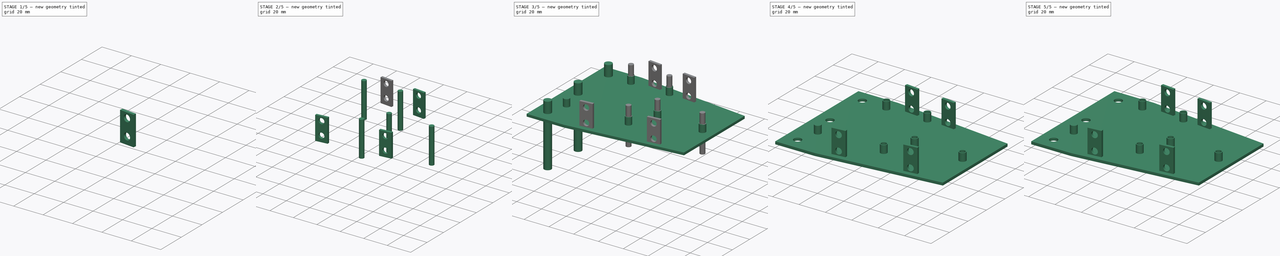
[diagram: build sequence overview — one tinted view per stage of 5, left to right]
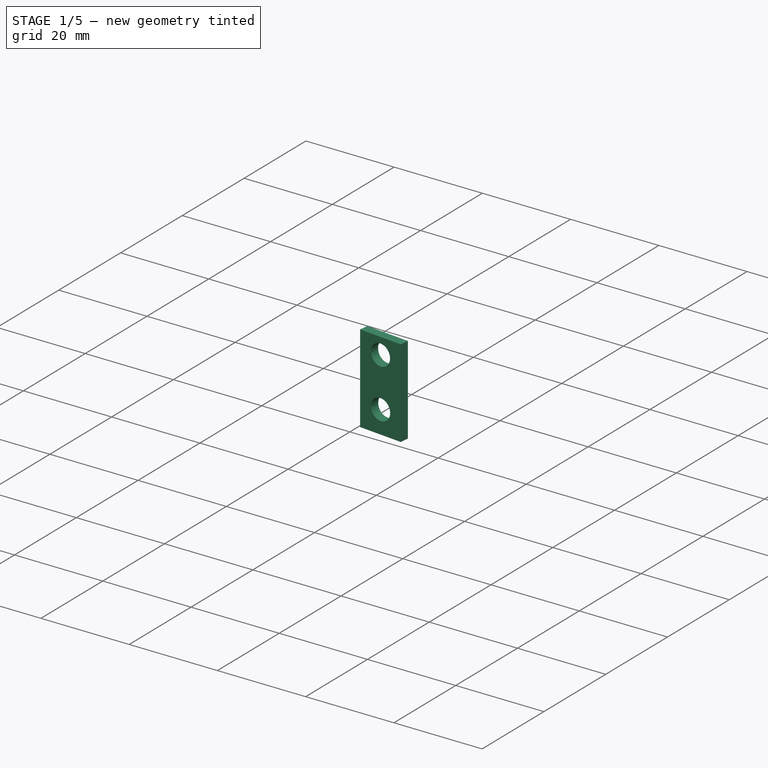
[diagram: stage 1 of 5 — iso view after this stage's code; geometry added in this stage tinted green]
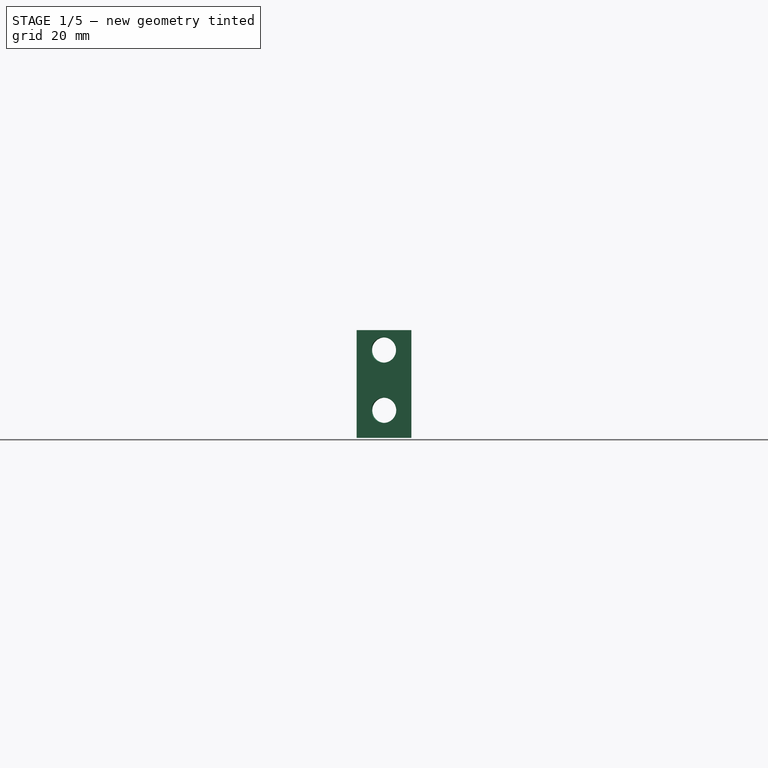
[diagram: stage 1 of 5 — front view after this stage's code; geometry added in this stage tinted green]
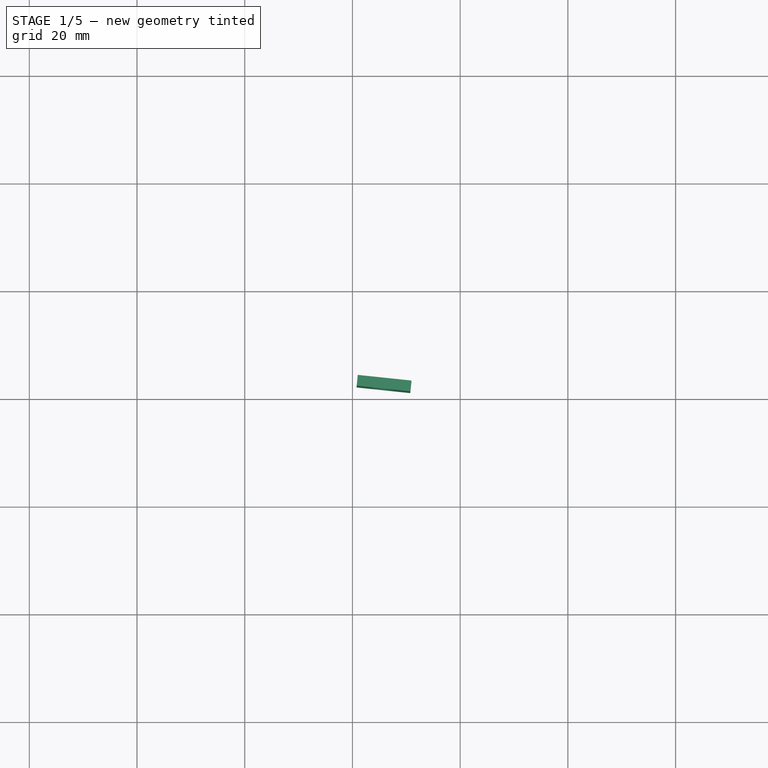
[diagram: stage 1 of 5 — top view after this stage's code; geometry added in this stage tinted green]
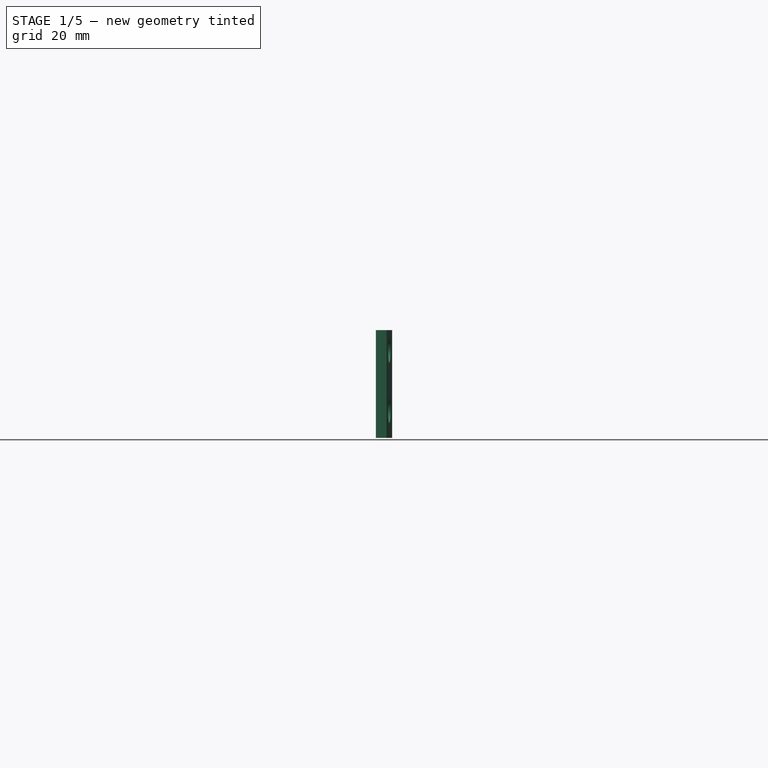
[diagram: stage 1 of 5 — right view after this stage's code; geometry added in this stage tinted green]
FCSTD DOCUMENT  (FreeCAD 0.20R29410 (Git))
Label: Base delantera
License: Creative Commons Attribution-ShareAlike
LicenseURL: http://creativecommons.org/licenses/by-sa/4.0/
objects: Sketcher::SketchObject×6, Part::Extrusion×6, Part::Cut×6, Part::MultiFuse×5
note: 23 computed .brp shape members not serialized (recipe doc carries the construction recipe); baked Part::Feature solids carry a one-line shape summary decoded from their .brp

FEATURE [Sketcher::SketchObject] Sketch003
  FullyConstrained = false
  MapMode = 5
  Placement = pos=(0,0,10) rot=(0,0,1;0rad)
  sketch-geometry (4):
    g0: Circle CenterX=10 CenterY=80.0167 CenterZ=0 NormalX=0 NormalY=0 NormalZ=1 AngleXU=0 Radius=2.9
    g1: Circle CenterX=10 CenterY=45.0083 CenterZ=0 NormalX=0 NormalY=0 NormalZ=1 AngleXU=0 Radius=2.9
    g2: Circle CenterX=10 CenterY=10 CenterZ=0 NormalX=0 NormalY=0 NormalZ=1 AngleXU=0 Radius=2.9
    g3: LineSegment StartX=10 StartY=10 StartZ=0 EndX=10 EndY=80.0167 EndZ=0
  constraints (7):
    c: Coincident(g3,g2)
    c: Coincident(g3,g0)
    c: Vertical(g3)
    c: Symmetric(g3,g3,g1)
    c: Diameter(g0) = 5.8
    c: Equal(g0,g1)
    c: Equal(g1,g2)
FEATURE [Sketcher::SketchObject] Sketch017
  FullyConstrained = false
  MapMode = 5
  Placement = pos=(0,0,30) rot=(0,0,1;0rad)
  sketch-geometry (6):
    g0: Circle CenterX=74.7921 CenterY=44.0089 CenterZ=0 NormalX=0 NormalY=0 NormalZ=1 AngleXU=0 Radius=2.55289
    g1: Circle CenterX=111.059 CenterY=44.0927 CenterZ=0 NormalX=0 NormalY=0 NormalZ=1 AngleXU=0 Radius=2.55289
    g2: Circle CenterX=60.0507 CenterY=78.8522 CenterZ=0 NormalX=0 NormalY=0 NormalZ=1 AngleXU=0 Radius=2.4438
    g3: Circle CenterX=29.1441 CenterY=78.6009 CenterZ=0 NormalX=0 NormalY=0 NormalZ=1 AngleXU=0 Radius=2.4438
    g4: Circle CenterX=14.5702 CenterY=25.2471 CenterZ=0 NormalX=0 NormalY=0 NormalZ=1 AngleXU=0 Radius=2.4438
    g5: Circle CenterX=64.4061 CenterY=25.4146 CenterZ=0 NormalX=0 NormalY=0 NormalZ=1 AngleXU=0 Radius=2.4438
  constraints (4):
    c: Equal(g0,g1)
    c: Equal(g2,g3)
    c: Equal(g3,g4)
    c: Equal(g4,g5)
FEATURE [Sketcher::SketchObject] Sketch018
  FullyConstrained = false
  MapMode = 5
  Placement = pos=(0,0,36) rot=(0,0,1;0rad)
  sketch-geometry (5):
    g0: Circle CenterX=74.7892 CenterY=44.0624 CenterZ=0 NormalX=0 NormalY=0 NormalZ=1 AngleXU=0 Radius=1.95541
    g1: Circle CenterX=111.024 CenterY=44.1108 CenterZ=0 NormalX=0 NormalY=0 NormalZ=1 AngleXU=0 Radius=1.95541
    g2: Circle CenterX=29.1598 CenterY=78.6822 CenterZ=0 NormalX=0 NormalY=0 NormalZ=1 AngleXU=0 Radius=1.945
    g3: Circle CenterX=60.0393 CenterY=78.8506 CenterZ=0 NormalX=0 NormalY=0 NormalZ=1 AngleXU=0 Radius=1.94571
    g4: Circle CenterX=64.4121 CenterY=25.4887 CenterZ=0 NormalX=0 NormalY=0 NormalZ=1 AngleXU=0 Radius=1.94571
  constraints (3):
    c: Equal(g0,g1)
    c: Equal(g3,g4)
    c: Diameter(g2) = 3.89
FEATURE [Sketcher::SketchObject] Sketch047
  FullyConstrained = false
  Placement = pos=(0,0,0) rot=(1,0,0;1.5708rad)
  sketch-geometry (4):
    g0: LineSegment StartX=-140 StartY=10 StartZ=0 EndX=-130 EndY=10 EndZ=0
    g1: LineSegment StartX=-130 StartY=10 StartZ=0 EndX=-130 EndY=30 EndZ=0
    g2: LineSegment StartX=-130 StartY=30 StartZ=0 EndX=-140 EndY=30 EndZ=0
    g3: LineSegment StartX=-140 StartY=30 StartZ=0 EndX=-140 EndY=10 EndZ=0
  constraints (8):
    c: Coincident(g0,g1)
    c: Coincident(g1,g2)
    c: Coincident(g2,g3)
    c: Coincident(g3,g0)
    c: Horizontal(g0)
    c: Horizontal(g2)
    c: Vertical(g1)
    c: Vertical(g3)
FEATURE [Part::Extrusion] Extrude049  label="Soporte008"
  Base = -> Sketch047
  Dir = (0,-1,2e-16)
  DirMode = 2
  FaceMakerClass = Part::FaceMakerBullseye
  LengthFwd = 2
  LengthRev = 0
  Placement = pos=(-96,-107,0) rot=(0,0,-1;1.5708rad)
  Solid = true
  Symmetric = false
FEATURE [Sketcher::SketchObject] Sketch048
  FullyConstrained = false
  MapMode = 5
  Placement = pos=(-98,-107,4e-16) rot=(0.57735,-0.57735,-0.57735;2.0944rad)
  Support = -> [Extrude049]
  sketch-geometry (4):
    g0: LineSegment StartX=-140.016 StartY=26.302 StartZ=0 EndX=-130.004 EndY=26.302 EndZ=0
    g1: Circle CenterX=-135.01 CenterY=26.302 CenterZ=0 NormalX=0 NormalY=0 NormalZ=1 AngleXU=0 Radius=2.34
    g2: LineSegment StartX=-140.095 StartY=15.1162 StartZ=0 EndX=-130 EndY=15.1162 EndZ=0
    g3: Circle CenterX=-135.047 CenterY=15.1162 CenterZ=0 NormalX=0 NormalY=0 NormalZ=1 AngleXU=0 Radius=2.34
  constraints (6):
    c: Horizontal(g0)
    c: Symmetric(g0,g0,g1)
    c: Horizontal(g2)
    c: Symmetric(g2,g2,g3)
    c: Equal(g1,g3)
    c: Diameter(g3) = 4.68
FEATURE [Part::Extrusion] Extrude050  label="Tornillos010"
  Base = -> Sketch048
  Dir = (-1,-2e-16,2e-16)
  DirMode = 2
  FaceMakerClass = Part::FaceMakerBullseye
  LengthFwd = 20
  LengthRev = 0
  Placement = pos=(17,0,0) rot=(0,0,1;0rad)
  Solid = true
  Symmetric = false
FEATURE [Part::Cut] Cut030  label="Soporte017"
  Base = -> Extrude049
  Placement = pos=(7.86971,-10.8501,18) rot=(0,0,-1;1.67552rad)
  Refine = true
  Tool = -> Extrude050
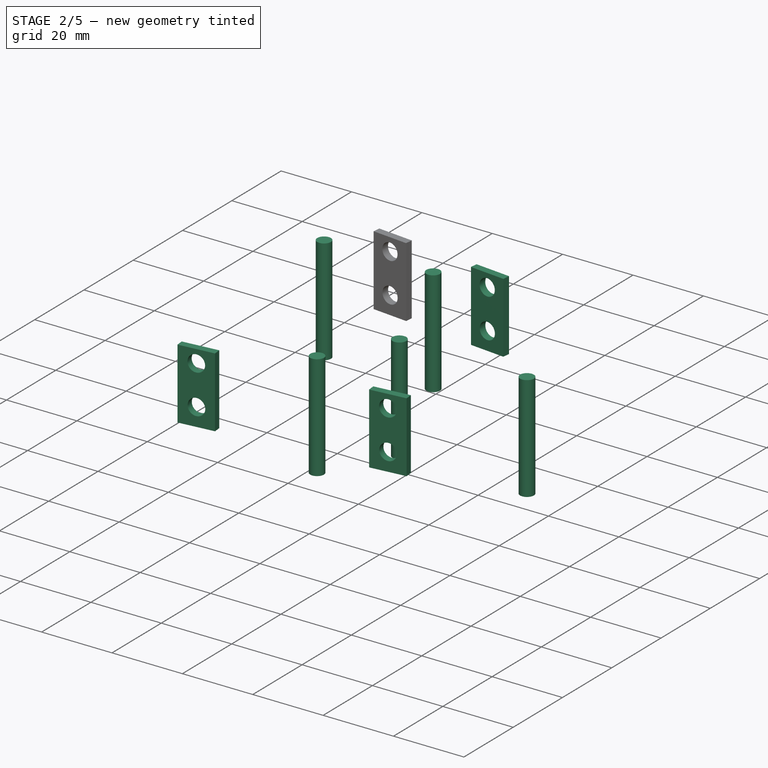
[diagram: stage 2 of 5 — iso view after this stage's code; geometry added in this stage tinted green]
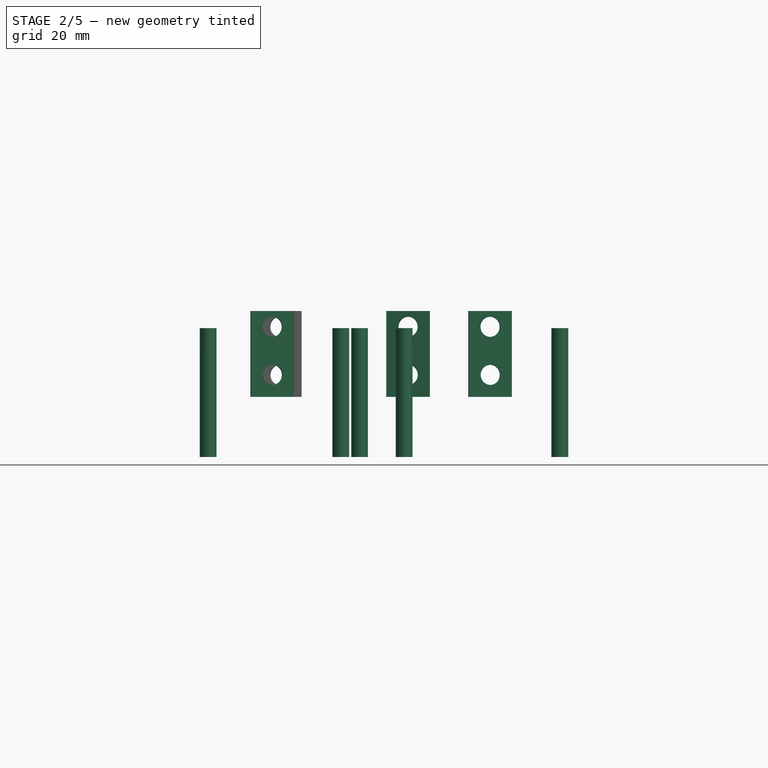
[diagram: stage 2 of 5 — front view after this stage's code; geometry added in this stage tinted green]
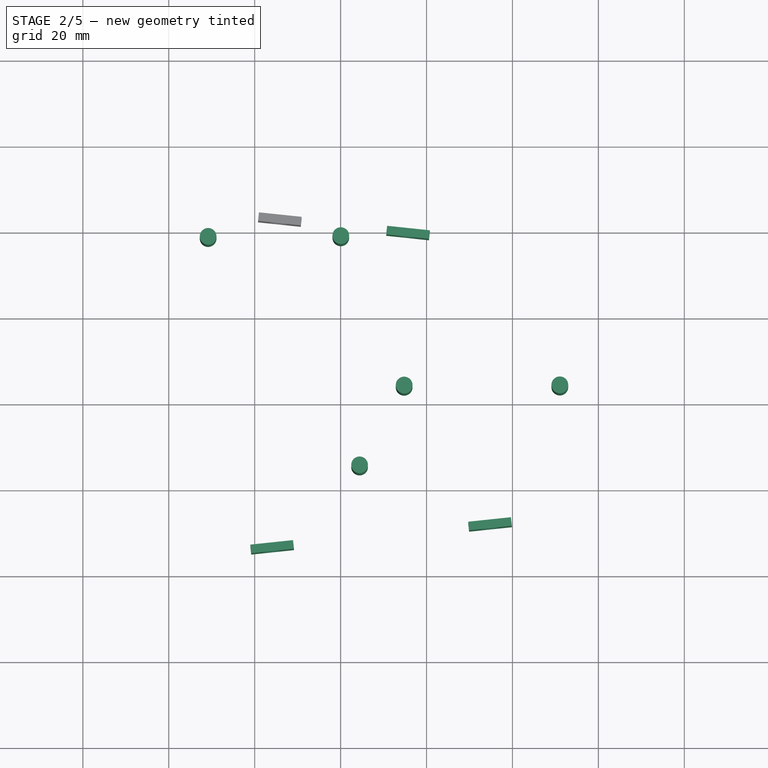
[diagram: stage 2 of 5 — top view after this stage's code; geometry added in this stage tinted green]
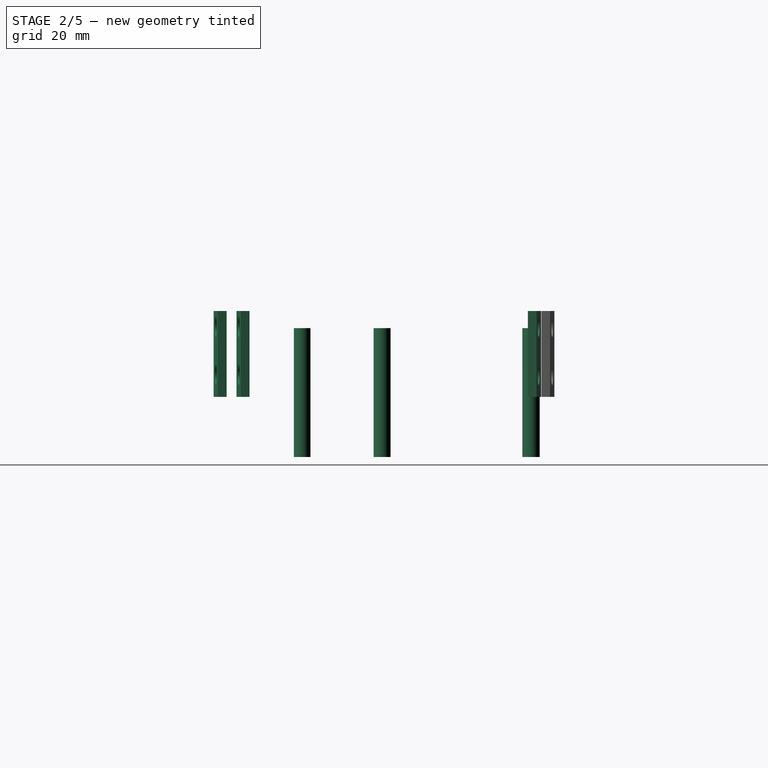
[diagram: stage 2 of 5 — right view after this stage's code; geometry added in this stage tinted green]
FEATURE [Part::Extrusion] Extrude054
  Base = -> Sketch018
  Dir = (0,0,1)
  DirMode = 2
  FaceMakerClass = Part::FaceMakerBullseye
  LengthFwd = 30
  LengthRev = 0
  Placement = pos=(0,0,-22) rot=(0,0,1;0rad)
  Solid = true
  Symmetric = false
FEATURE [Part::Cut] Cut027  label="Soporte014"
  Base = -> Extrude049
  Placement = pos=(77.0696,-87.6841,18) rot=(0,0,-1;1.46608rad)
  Refine = true
  Tool = -> Extrude050
FEATURE [Part::Cut] Cut028  label="Soporte015"
  Base = -> Extrude049
  Placement = pos=(26.349,-93.0151,18) rot=(0,0,-1;1.46608rad)
  Refine = true
  Tool = -> Extrude050
FEATURE [Part::Cut] Cut029  label="Soporte016"
  Base = -> Extrude049
  Placement = pos=(37.7054,-13.986,18) rot=(0,0,-1;1.67552rad)
  Refine = true
  Tool = -> Extrude050
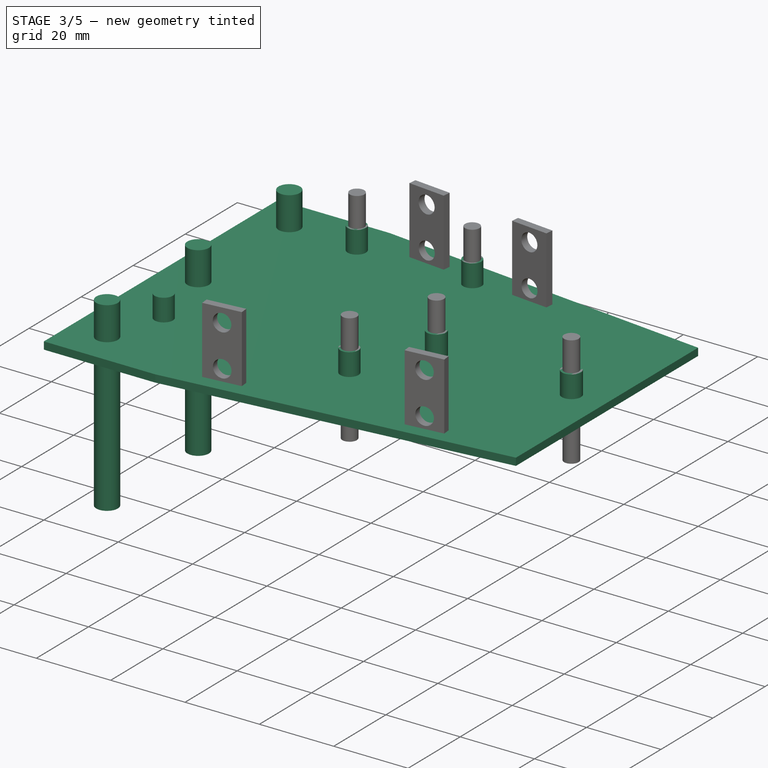
[diagram: stage 3 of 5 — iso view after this stage's code; geometry added in this stage tinted green]
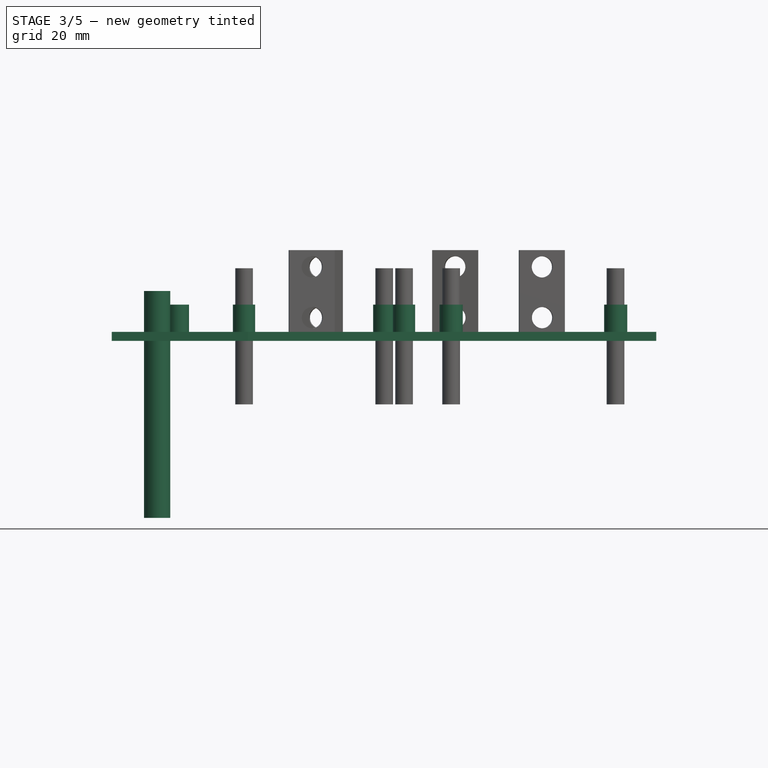
[diagram: stage 3 of 5 — front view after this stage's code; geometry added in this stage tinted green]
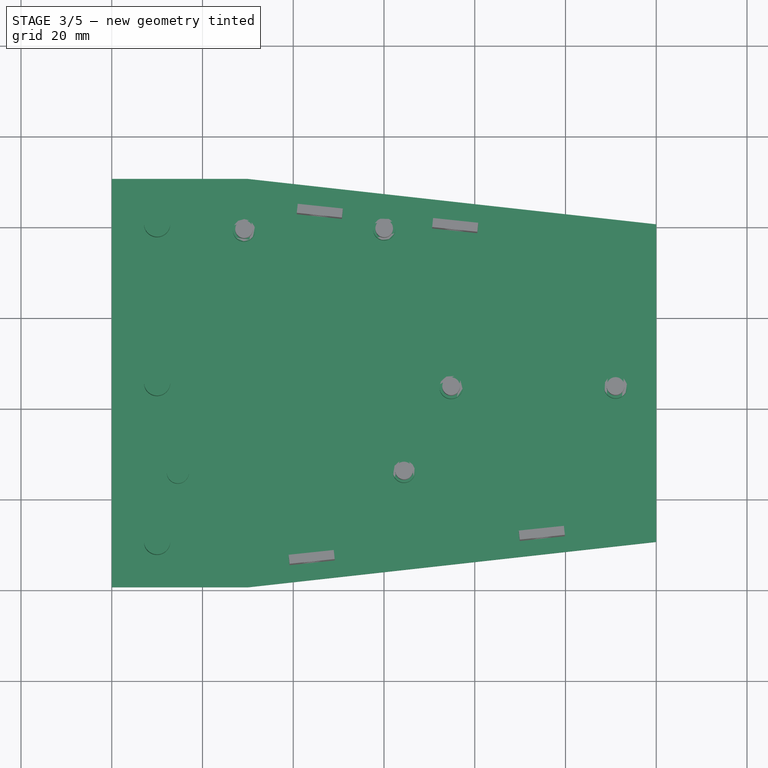
[diagram: stage 3 of 5 — top view after this stage's code; geometry added in this stage tinted green]
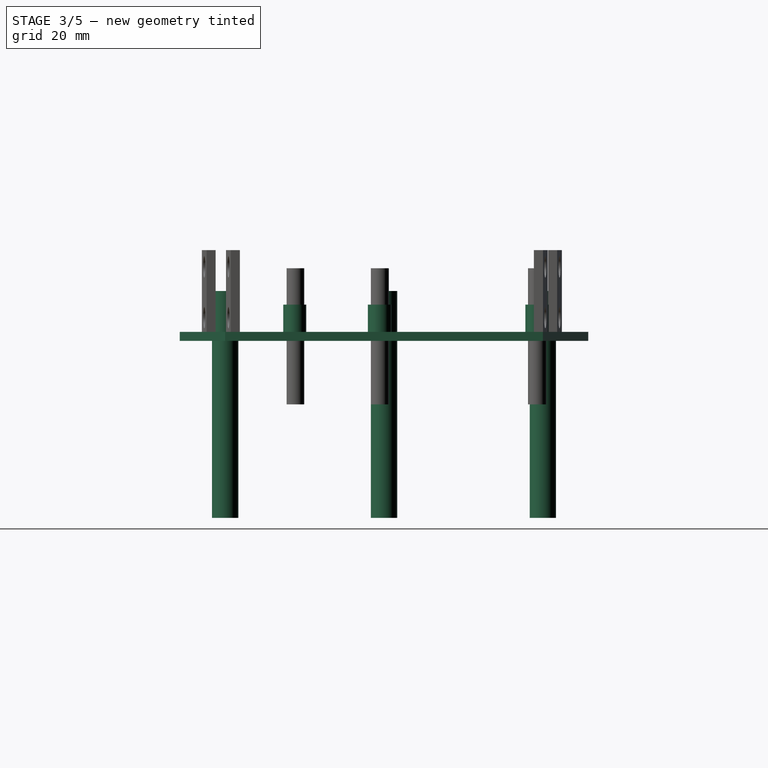
[diagram: stage 3 of 5 — right view after this stage's code; geometry added in this stage tinted green]
FEATURE [Sketcher::SketchObject] Sketch049
  FullyConstrained = false
  sketch-geometry (6):
    g0: LineSegment StartX=0 StartY=0 StartZ=0 EndX=30 EndY=0 EndZ=0
    g1: LineSegment StartX=30 StartY=0 StartZ=0 EndX=120 EndY=10 EndZ=0
    g2: LineSegment StartX=0 StartY=0 StartZ=0 EndX=0 EndY=90 EndZ=0
    g3: LineSegment StartX=0 StartY=90 StartZ=0 EndX=30 EndY=90 EndZ=0
    g4: LineSegment StartX=30 StartY=90 StartZ=0 EndX=120 EndY=80 EndZ=0
    g5: LineSegment StartX=120 StartY=80 StartZ=0 EndX=120 EndY=10 EndZ=0
  constraints (11):
    c: Coincident(g-1,g0)
    c: PointOnObject(g0,g-1)
    c: Coincident(g0,g1)
    c: Coincident(g0,g2)
    c: PointOnObject(g2,g-2)
    c: Coincident(g2,g3)
    c: Horizontal(g3)
    c: Coincident(g3,g4)
    c: Coincident(g4,g5)
    c: Coincident(g5,g1)
    c: Vertical(g5)
FEATURE [Part::Extrusion] Extrude051  label="Base delantera alta002"
  Base = -> Sketch049
  Dir = (0,0,1)
  DirMode = 2
  FaceMakerClass = Part::FaceMakerBullseye
  LengthFwd = 2
  LengthRev = 0
  Placement = pos=(0,0,28) rot=(0,0,1;0rad)
  Solid = true
  Symmetric = false
FEATURE [Part::Extrusion] Extrude052  label="Tornillos011"
  Base = -> Sketch003
  Dir = (0,0,1)
  DirMode = 2
  FaceMakerClass = Part::FaceMakerBullseye
  LengthFwd = 50
  LengthRev = 0
  Placement = pos=(0,0,-21) rot=(0,0,1;0rad)
  Solid = true
  Symmetric = false
FEATURE [Part::Extrusion] Extrude053  label="Base tornillos001"
  Base = -> Sketch017
  Dir = (0,0,1)
  DirMode = 2
  FaceMakerClass = Part::FaceMakerBullseye
  LengthFwd = 7
  LengthRev = 0
  Placement = pos=(0,0,-1) rot=(0,0,1;0rad)
  Solid = true
  Symmetric = false
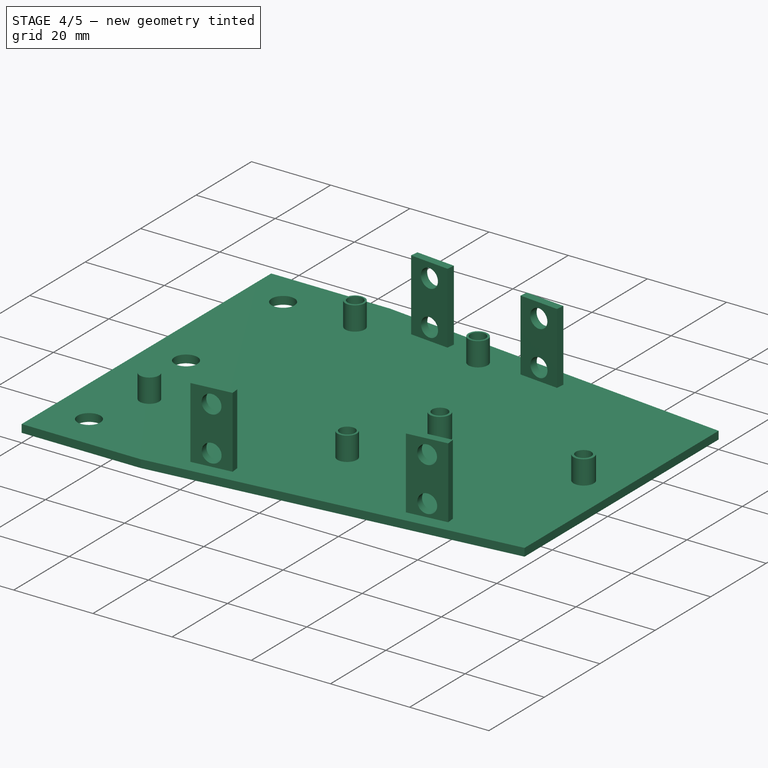
[diagram: stage 4 of 5 — iso view after this stage's code; geometry added in this stage tinted green]
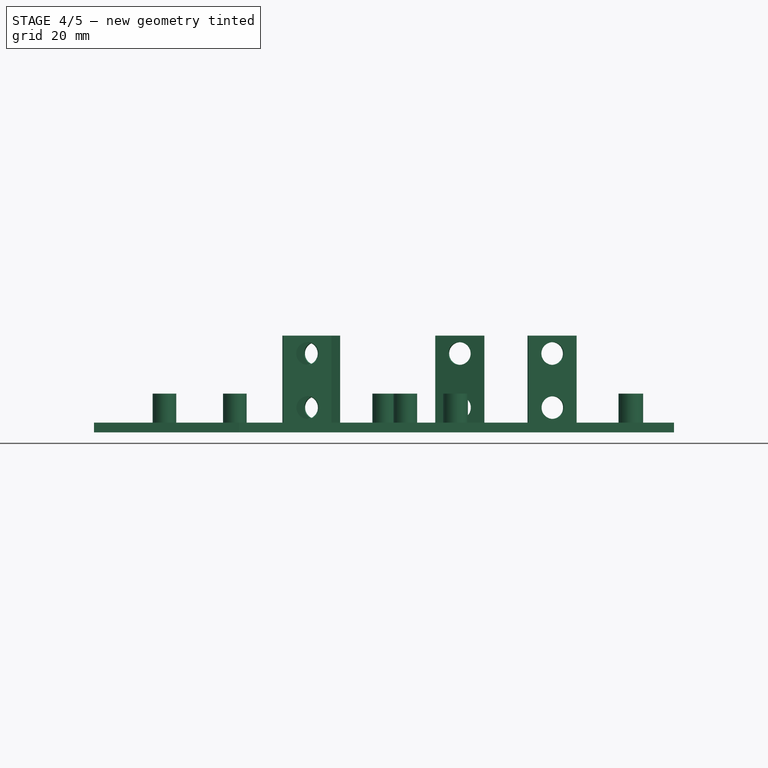
[diagram: stage 4 of 5 — front view after this stage's code; geometry added in this stage tinted green]
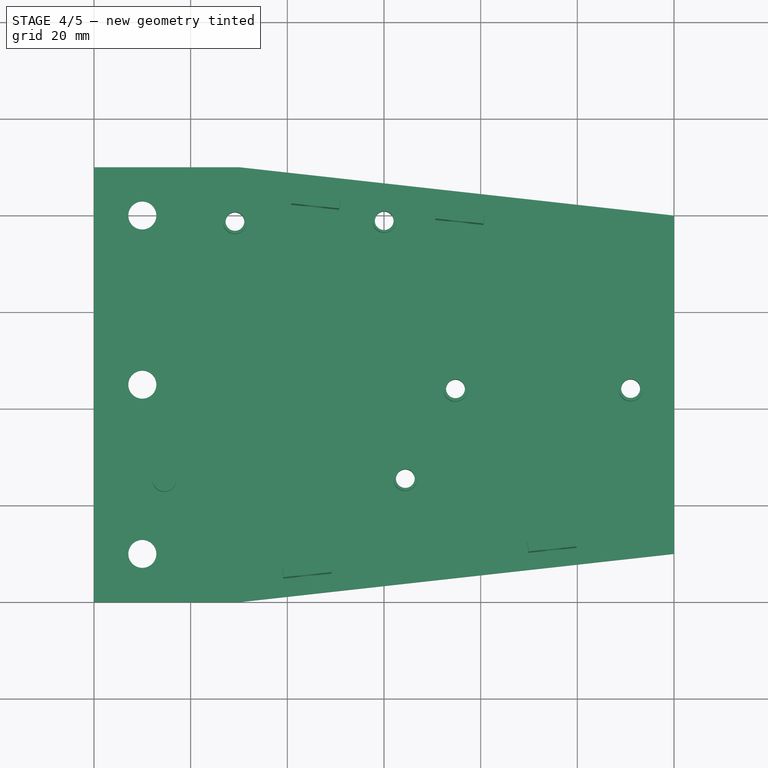
[diagram: stage 4 of 5 — top view after this stage's code; geometry added in this stage tinted green]
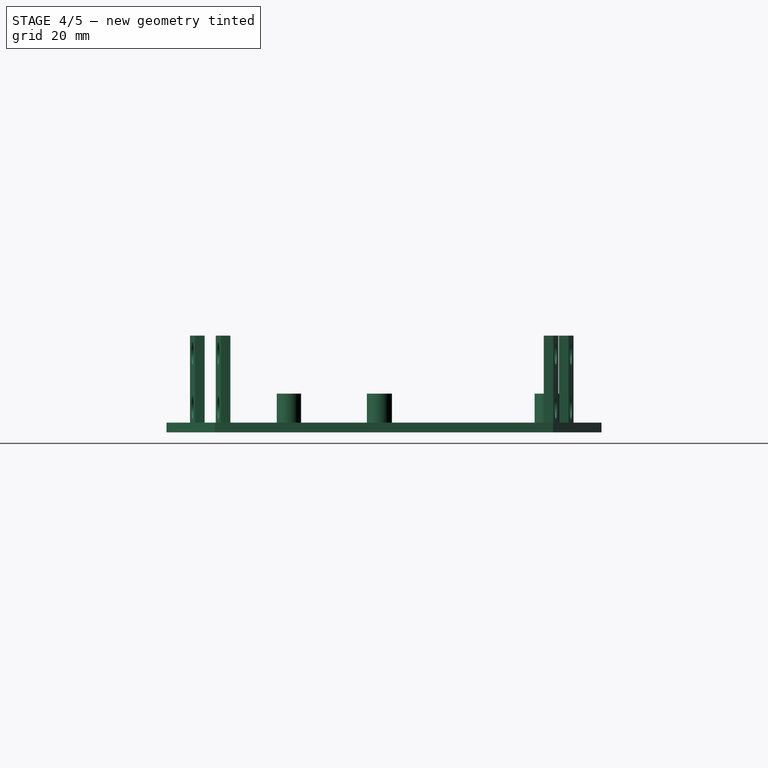
[diagram: stage 4 of 5 — right view after this stage's code; geometry added in this stage tinted green]
FEATURE [Part::Cut] Cut
  Base = -> Extrude051
  Refine = true
  Tool = -> Extrude052
FEATURE [Part::MultiFuse] Fusion
  Refine = true
  Shapes = -> [Cut,Extrude053]
FEATURE [Part::Cut] Cut026
  Base = -> Fusion
  Refine = true
  Tool = -> Extrude054
FEATURE [Part::MultiFuse] Fusion015
  Refine = true
  Shapes = -> [Cut026,Cut027]
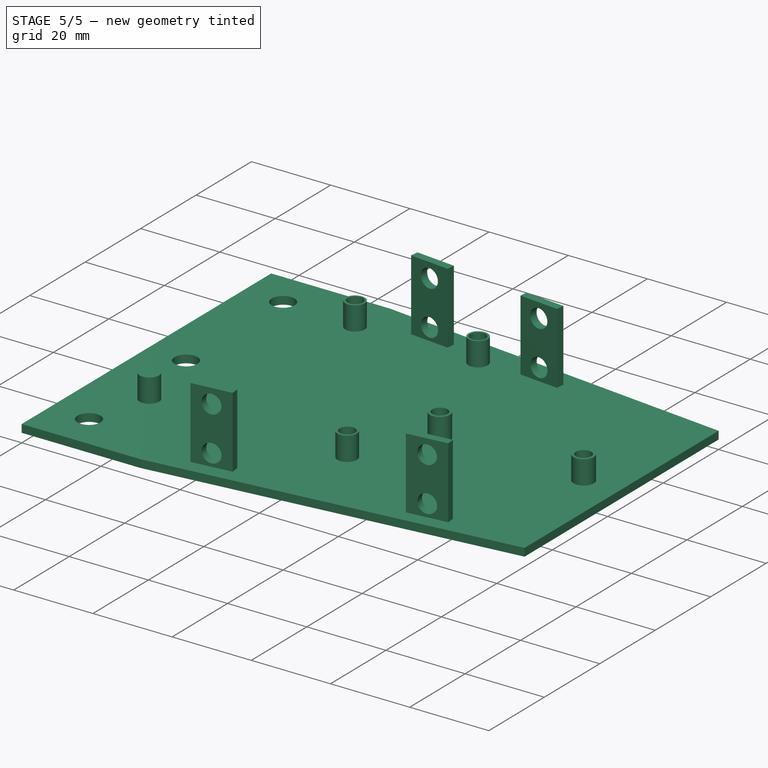
[diagram: stage 5 of 5 — iso view after this stage's code; geometry added in this stage tinted green]
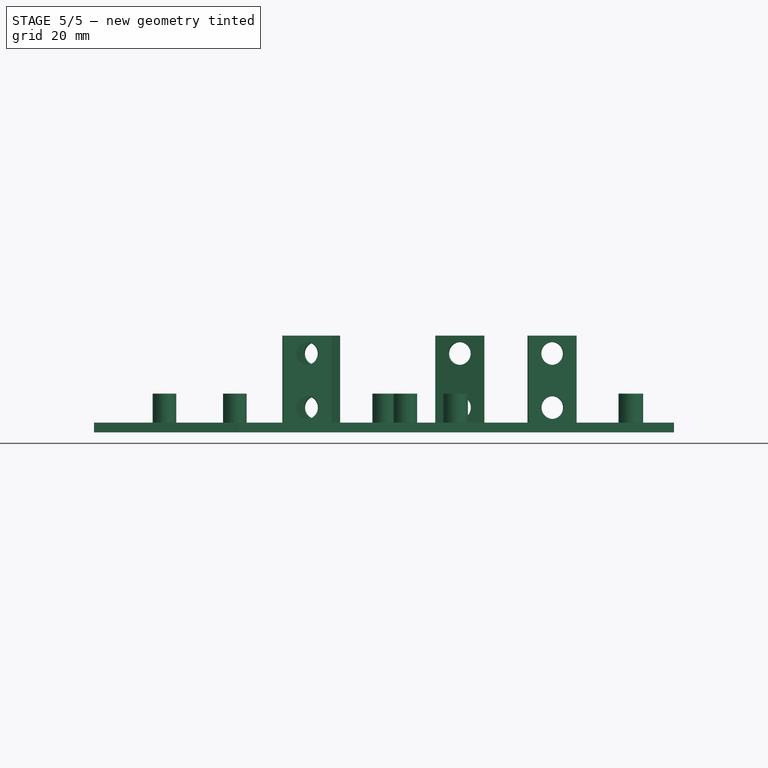
[diagram: stage 5 of 5 — front view after this stage's code; geometry added in this stage tinted green]
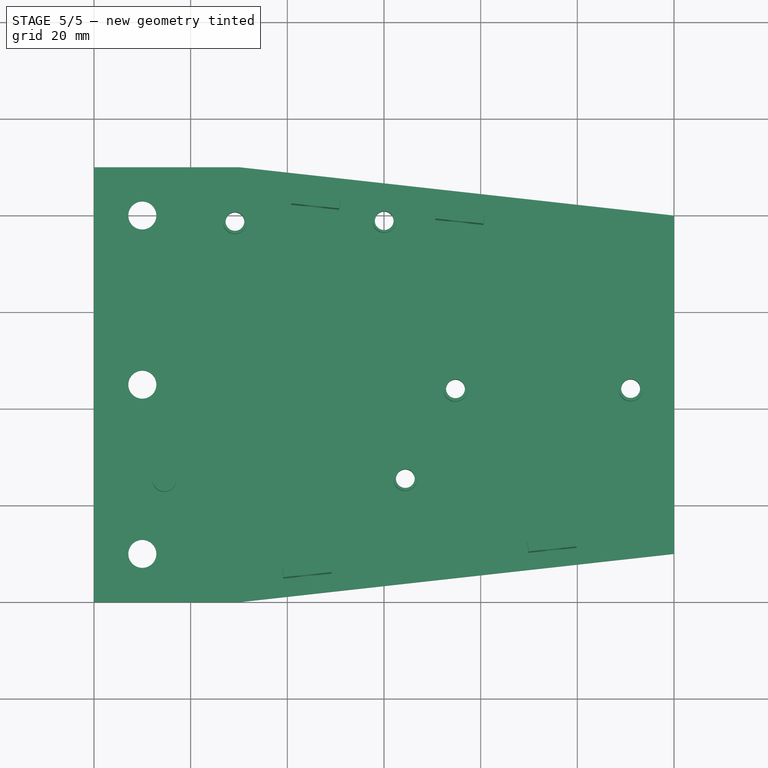
[diagram: stage 5 of 5 — top view after this stage's code; geometry added in this stage tinted green]
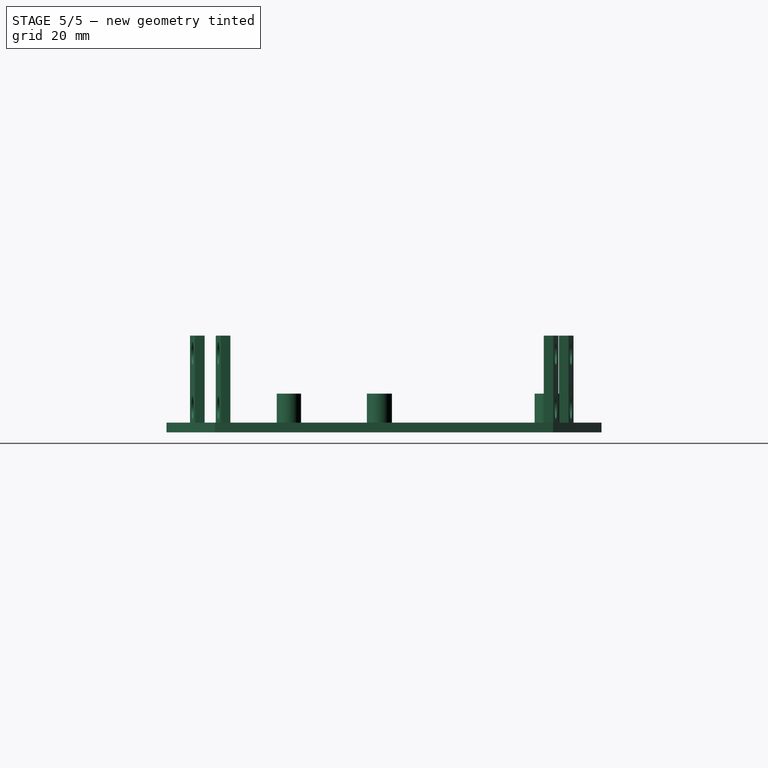
[diagram: stage 5 of 5 — right view after this stage's code; geometry added in this stage tinted green]
FEATURE [Part::MultiFuse] Fusion016
  Refine = true
  Shapes = -> [Fusion015,Cut028]
FEATURE [Part::MultiFuse] Fusion017
  Refine = true
  Shapes = -> [Fusion016,Cut029]
FEATURE [Part::MultiFuse] Fusion018  label="Base imprimir"
  Refine = true
  Shapes = -> [Fusion017,Cut030]
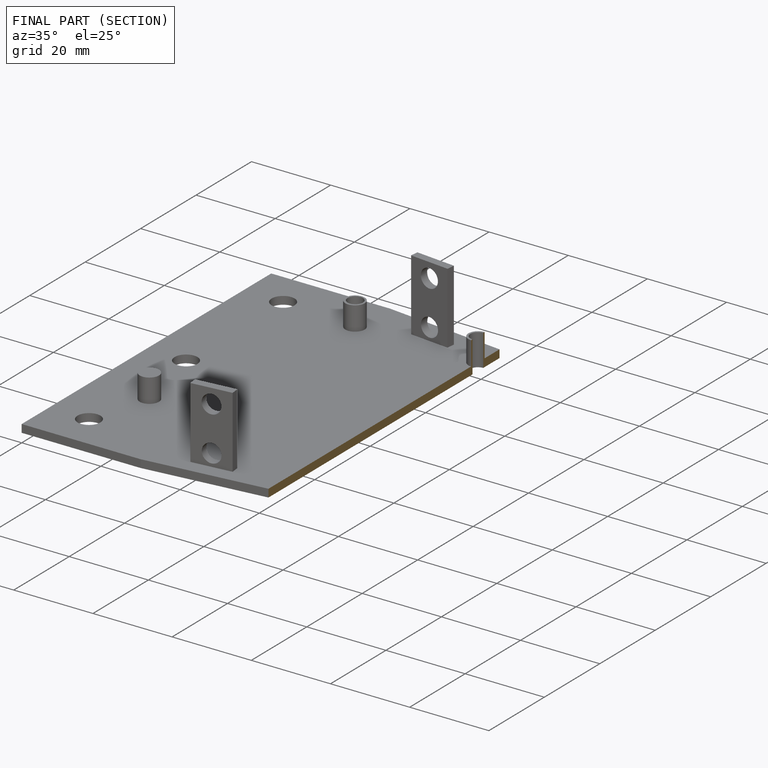
[diagram: finished part — half-section view (interior)]
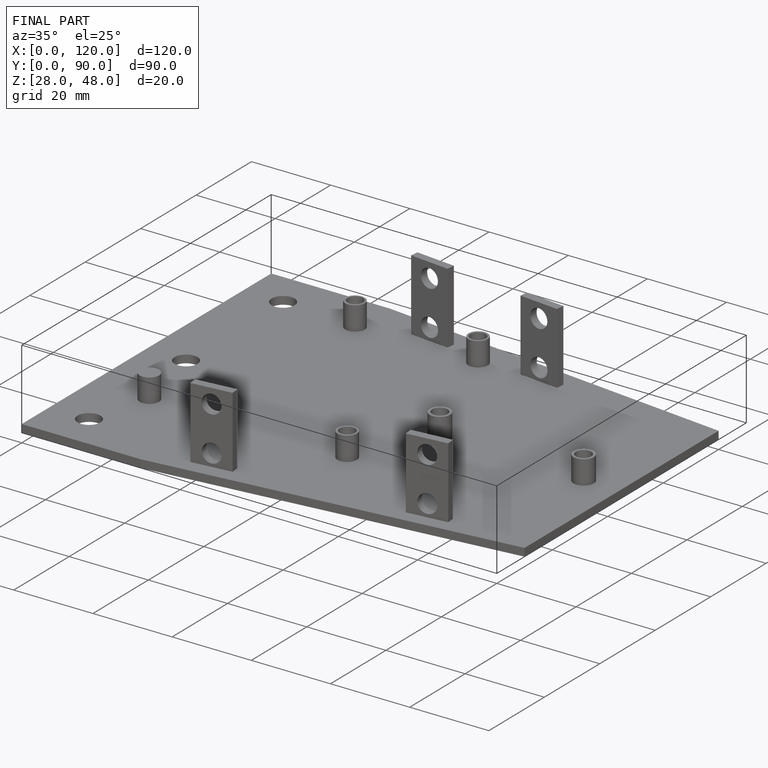
[diagram: finished part — iso view with bounding-box wireframe]
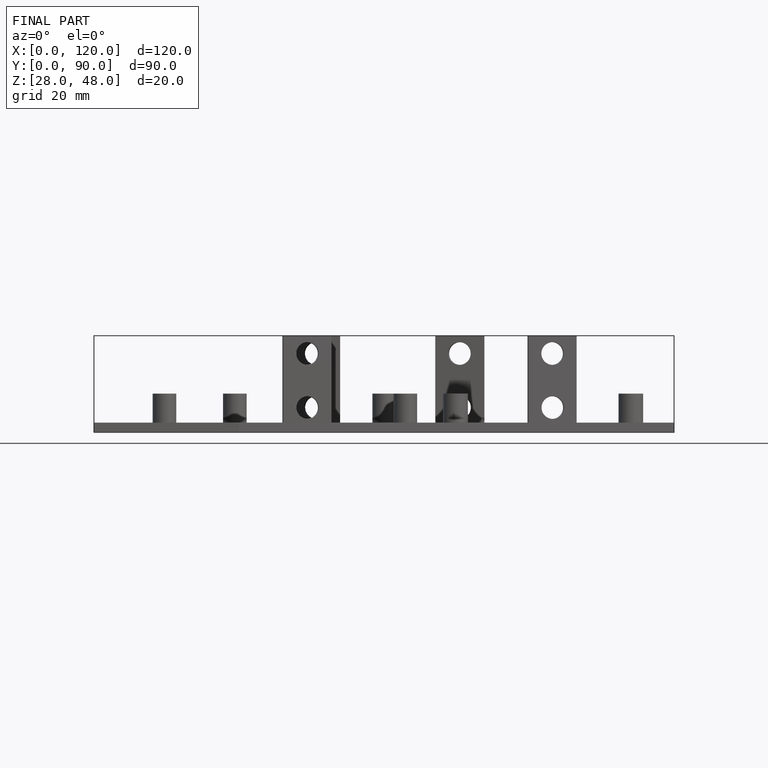
[diagram: finished part — front view with bounding-box wireframe]
